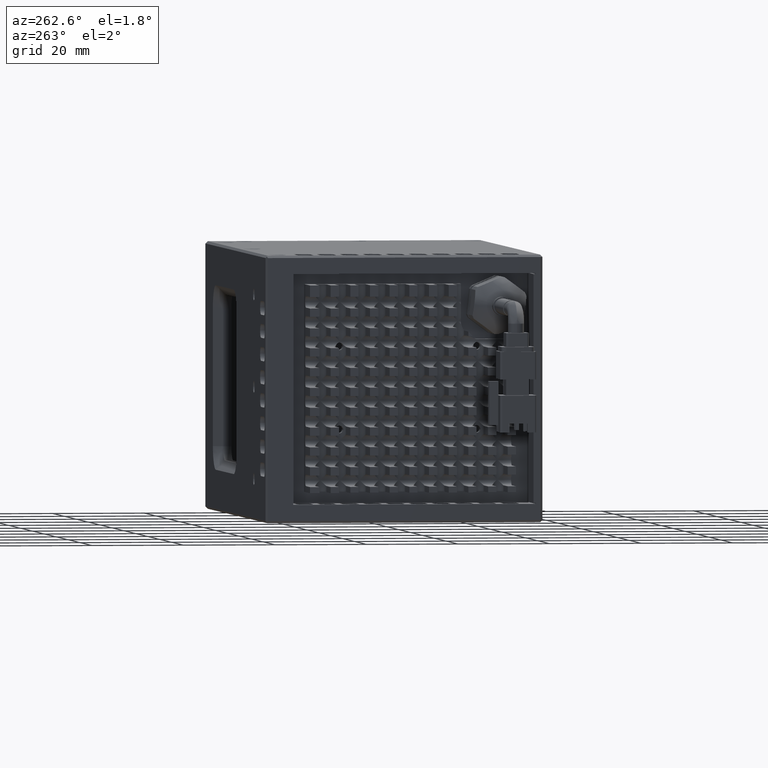
[diagram: clean part render]
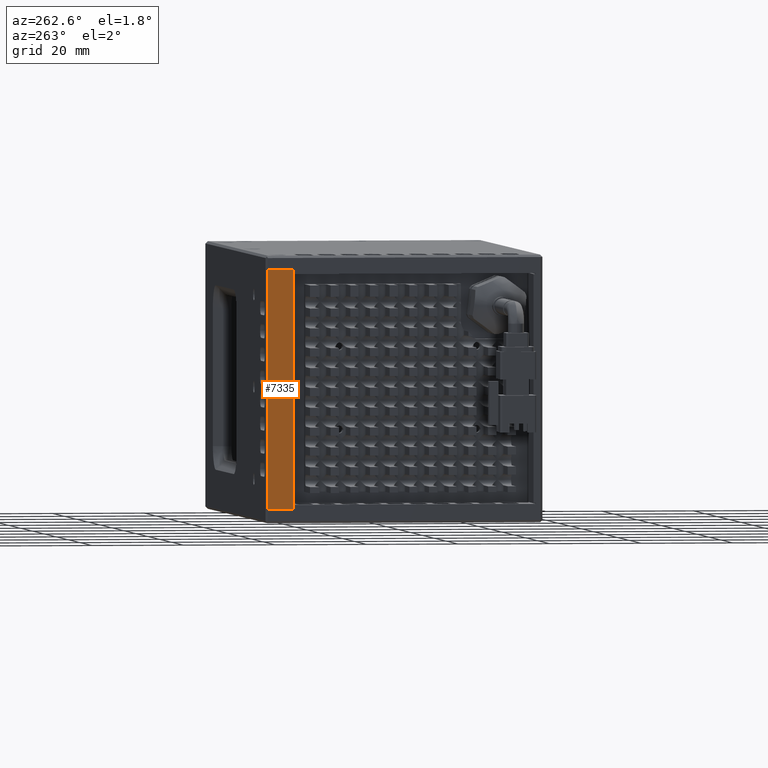
[diagram: same view with one face highlighted and labeled with its STEP entity id]
A machine part, auxiliary view. The second image highlights one B-rep face of the part: STEP entity #7335.
In plain terms, the highlighted planar face has unit normal (1, 0, 0).
Its self-contained STEP definition (entity closure, byte-faithful):
#1672 = DIRECTION ( 'NONE',  ( 1.000000000000000000, 3.435095992033281500E-016, 3.435095992033281500E-016 ) ) ;
#2817 = DIRECTION ( 'NONE',  ( 3.435095992033281500E-016, -1.000000000000000000, 2.465190328815661900E-032 ) ) ;
#5449 = VERTEX_POINT ( 'NONE', #51239 ) ;
#7335 = ADVANCED_FACE ( 'NONE', ( #44990 ), #12096, .F. ) ;
#8342 = ORIENTED_EDGE ( 'NONE', *, *, #16702, .T. ) ;
#9062 = ORIENTED_EDGE ( 'NONE', *, *, #66656, .F. ) ;
#9218 = CARTESIAN_POINT ( 'NONE',  ( -68.57424922391153600, 52.27699333090258400, 55.00000000000953500 ) ) ;
#9365 = LINE ( 'NONE', #55816, #35919 ) ;
#11410 = CARTESIAN_POINT ( 'NONE',  ( -68.57424922391152200, 46.77699333090259900, 3.000000000009529700 ) ) ;
#12096 = PLANE ( 'NONE',  #49987 ) ;
#13252 = CARTESIAN_POINT ( 'NONE',  ( -68.57424922391152200, 52.77699333090259900, 3.000000000009523000 ) ) ;
#16702 = EDGE_CURVE ( 'NONE', #5449, #59505, #49527, .T. ) ;
#16950 = LINE ( 'NONE', #57645, #29394 ) ;
#18959 = CARTESIAN_POINT ( 'NONE',  ( -68.57424922391153600, 46.77699333090259900, 55.00000000000952800 ) ) ;
#24890 = EDGE_CURVE ( 'NONE', #59505, #27077, #27374, .T. ) ;
#25058 = VERTEX_POINT ( 'NONE', #9218 ) ;
#25724 = VECTOR ( 'NONE', #61106, 1000.000000000000000 ) ;
#27077 = VERTEX_POINT ( 'NONE', #18959 ) ;
#27374 = LINE ( 'NONE', #29418, #25724 ) ;
#27765 = EDGE_LOOP ( 'NONE', ( #9062, #8342, #52967, #33055 ) ) ;
#29394 = VECTOR ( 'NONE', #41707, 1000.000000000000000 ) ;
#29418 = CARTESIAN_POINT ( 'NONE',  ( -68.57424922391152200, 46.77699333090259900, 3.000000000009508800 ) ) ;
#32991 = EDGE_CURVE ( 'NONE', #27077, #25058, #9365, .T. ) ;
#33055 = ORIENTED_EDGE ( 'NONE', *, *, #32991, .T. ) ;
#33476 = CARTESIAN_POINT ( 'NONE',  ( -68.57424922391153600, 52.77699333090259900, 55.00000000000952800 ) ) ;
#35462 = VECTOR ( 'NONE', #2817, 1000.000000000000000 ) ;
#35919 = VECTOR ( 'NONE', #61165, 1000.000000000000000 ) ;
#38775 = DIRECTION ( 'NONE',  ( 3.435095992033281500E-016, -1.000000000000000000, 2.465190328815661900E-032 ) ) ;
#41707 = DIRECTION ( 'NONE',  ( -3.435095992033281500E-016, -9.334694145667452600E-032, 1.000000000000000000 ) ) ;
#44990 = FACE_OUTER_BOUND ( 'NONE', #27765, .T. ) ;
#49527 = LINE ( 'NONE', #13252, #35462 ) ;
#49987 = AXIS2_PLACEMENT_3D ( 'NONE', #33476, #1672, #38775 ) ;
#51239 = CARTESIAN_POINT ( 'NONE',  ( -68.57424922391152200, 52.27699333090258400, 3.000000000009529700 ) ) ;
#52967 = ORIENTED_EDGE ( 'NONE', *, *, #24890, .T. ) ;
#55816 = CARTESIAN_POINT ( 'NONE',  ( -68.57424922391153600, 52.77699333090259900, 55.00000000000952800 ) ) ;
#57645 = CARTESIAN_POINT ( 'NONE',  ( -68.57424922391152200, 52.27699333090258400, 3.000000000009508800 ) ) ;
#59505 = VERTEX_POINT ( 'NONE', #11410 ) ;
#61106 = DIRECTION ( 'NONE',  ( -3.435095992033281500E-016, -9.334694145667452600E-032, 1.000000000000000000 ) ) ;
#61165 = DIRECTION ( 'NONE',  ( -3.435095992033281500E-016, 1.000000000000000000, -2.465190328815661900E-032 ) ) ;
#66656 = EDGE_CURVE ( 'NONE', #5449, #25058, #16950, .T. ) ;